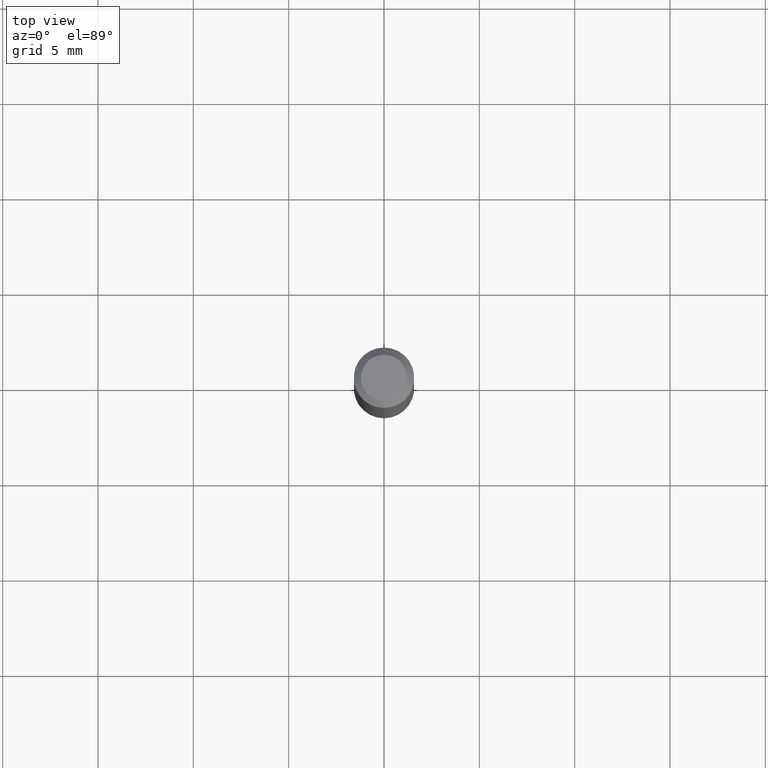
[diagram: clean part render]
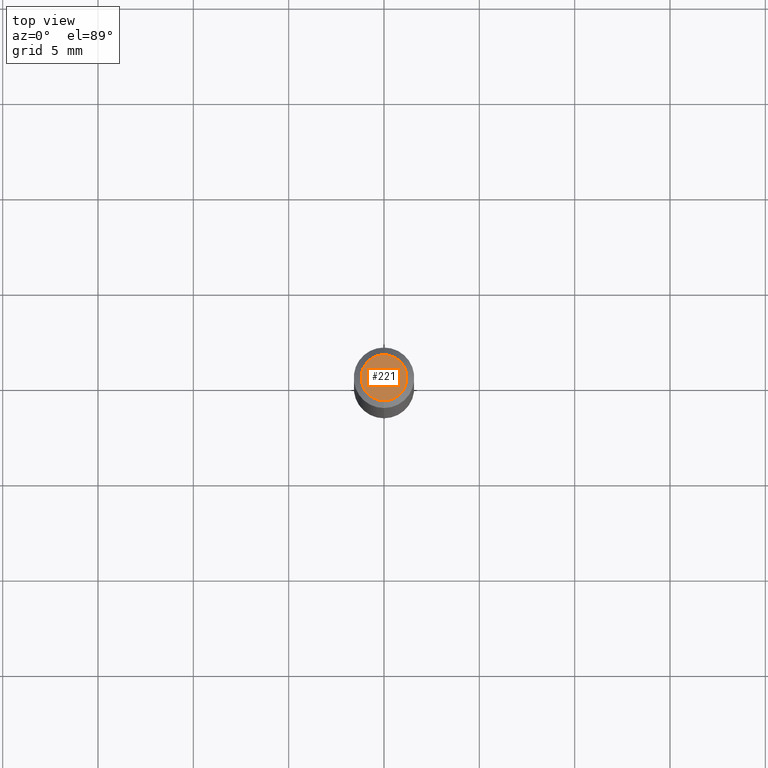
[diagram: same view with one face highlighted and labeled with its STEP entity id]
A machine part, top view. The second image highlights one B-rep face of the part: STEP entity #221.
In plain terms, the highlighted planar face has unit normal (0, -0, -1).
Its self-contained STEP definition (entity closure, byte-faithful):
#3 = EDGE_CURVE ( 'NONE', #283, #385, #195, .T. ) ;
#31 = EDGE_LOOP ( 'NONE', ( #85, #138 ) ) ;
#43 = DIRECTION ( 'NONE',  ( -6.982962677686266711E-15, -1.000000000000000000, 3.491496887689644335E-15 ) ) ;
#50 = EDGE_CURVE ( 'NONE', #385, #283, #475, .T. ) ;
#85 = ORIENTED_EDGE ( 'NONE', *, *, #3, .T. ) ;
#112 = AXIS2_PLACEMENT_3D ( 'NONE', #471, #169, #43 ) ;
#129 = CARTESIAN_POINT ( 'NONE',  ( -3.773273898774340269E-16, -0.04749999999999999362, 1.569865211436356637E-16 ) ) ;
#138 = ORIENTED_EDGE ( 'NONE', *, *, #50, .T. ) ;
#148 = AXIS2_PLACEMENT_3D ( 'NONE', #171, #215, #323 ) ;
#157 = DIRECTION ( 'NONE',  ( -6.982962677686266711E-15, -1.000000000000000000, 3.491496887689644335E-15 ) ) ;
#169 = DIRECTION ( 'NONE',  ( -2.445457948483658713E-29, 3.491496887689643941E-15, 1.000000000000000000 ) ) ;
#171 = CARTESIAN_POINT ( 'NONE',  ( 3.316907271900976096E-16, 0.04749999999999999362, -1.702758926760692950E-16 ) ) ;
#190 = DIRECTION ( 'NONE',  ( -2.445457948483658713E-29, 3.491496887689643941E-15, 1.000000000000000000 ) ) ;
#195 = CIRCLE ( 'NONE', #427, 0.04749999999999999362 ) ;
#198 = CARTESIAN_POINT ( 'NONE',  ( 2.166573282956153108E-46, -3.093319956322892712E-32, -8.859581021622424981E-18 ) ) ;
#215 = DIRECTION ( 'NONE',  ( 2.445457948483658433E-29, -3.491496887689643941E-15, -1.000000000000000000 ) ) ;
#221 = ADVANCED_FACE ( 'NONE', ( #396 ), #356, .F. ) ;
#245 = CARTESIAN_POINT ( 'NONE',  ( 3.840629472727447874E-16, 0.04749999999999999362, -1.747056831868805136E-16 ) ) ;
#283 = VERTEX_POINT ( 'NONE', #245 ) ;
#323 = DIRECTION ( 'NONE',  ( 6.982962677686265922E-15, 1.000000000000000000, -3.491496887689643941E-15 ) ) ;
#356 = PLANE ( 'NONE',  #148 ) ;
#385 = VERTEX_POINT ( 'NONE', #129 ) ;
#396 = FACE_OUTER_BOUND ( 'NONE', #31, .T. ) ;
#427 = AXIS2_PLACEMENT_3D ( 'NONE', #198, #190, #157 ) ;
#471 = CARTESIAN_POINT ( 'NONE',  ( 2.166573282956153108E-46, -3.093319956322892712E-32, -8.859581021622424981E-18 ) ) ;
#475 = CIRCLE ( 'NONE', #112, 0.04749999999999999362 ) ;